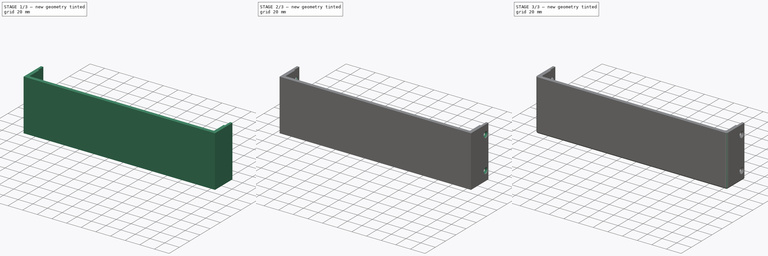
[diagram: build sequence overview — one tinted view per stage of 3, left to right]
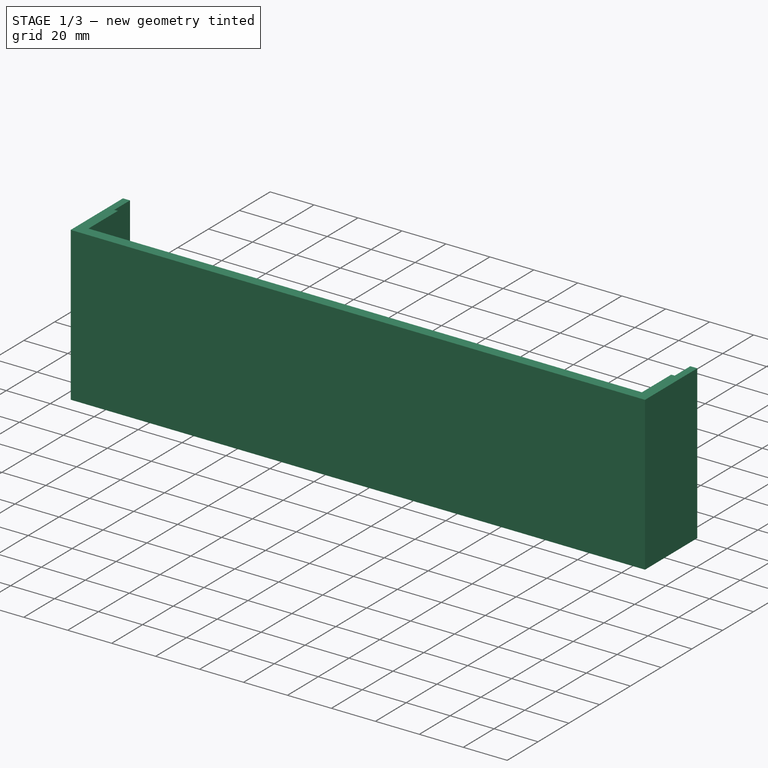
[diagram: stage 1 of 3 — iso view after this stage's code; geometry added in this stage tinted green]
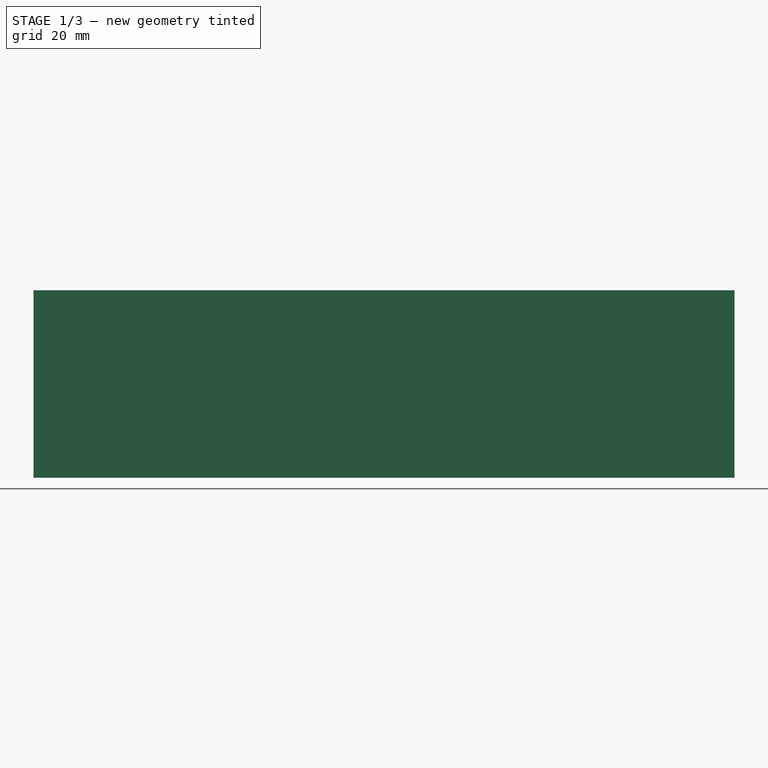
[diagram: stage 1 of 3 — front view after this stage's code; geometry added in this stage tinted green]
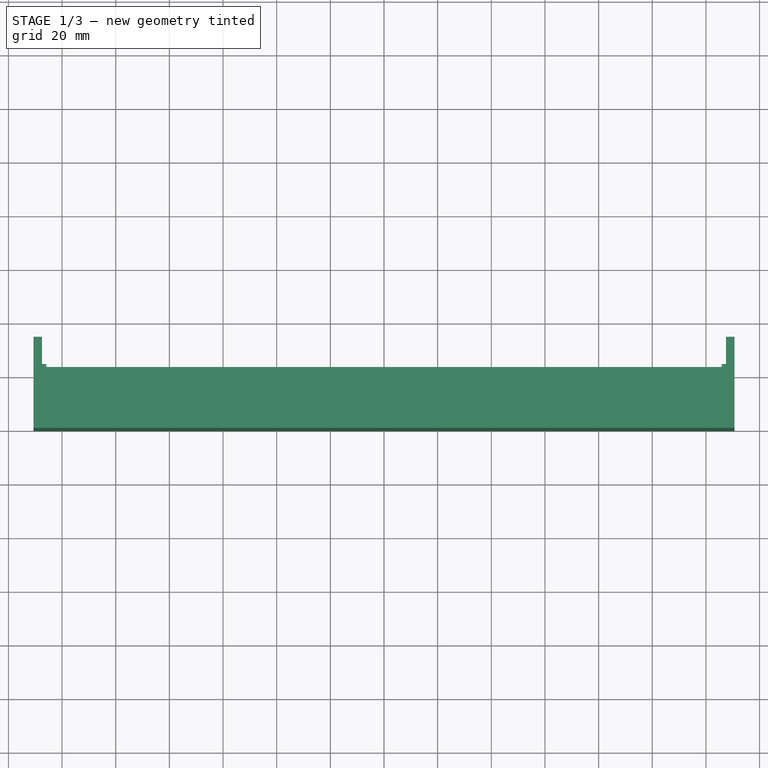
[diagram: stage 1 of 3 — top view after this stage's code; geometry added in this stage tinted green]
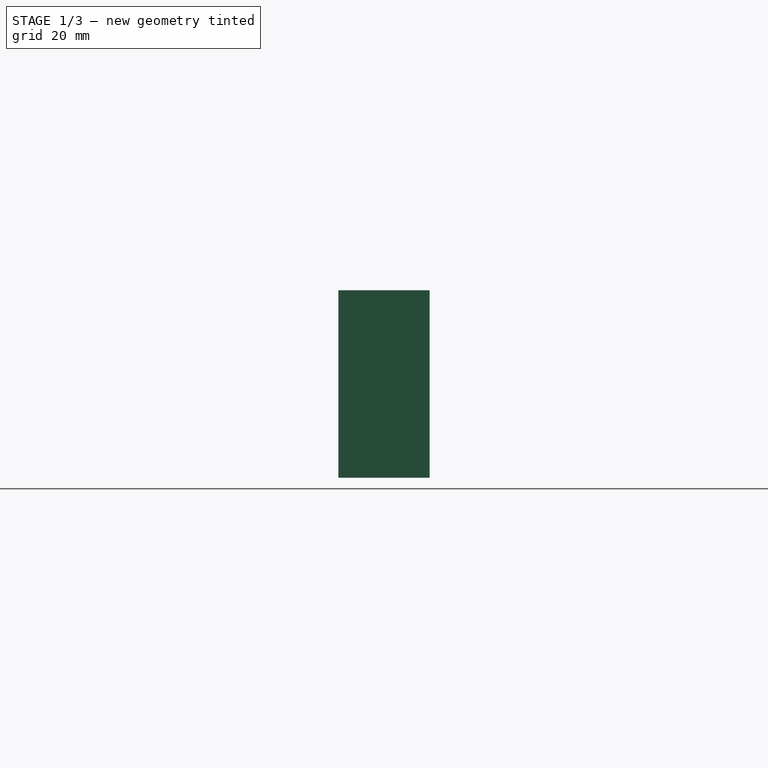
[diagram: stage 1 of 3 — right view after this stage's code; geometry added in this stage tinted green]
FCSTD DOCUMENT  (FreeCAD 1.0R38642 (Git))
Label: jigsaw_blade_holder
License: All rights reserved
LicenseURL: https://en.wikipedia.org/wiki/All_rights_reserved
objects: Sketcher::SketchObject×4, PartDesign::Pad×3, PartDesign::Hole×2, PartDesign::Fillet×2, PartDesign::Body×1
note: 30 computed .brp shape members not serialized (recipe doc carries the construction recipe); baked Part::Feature solids carry a one-line shape summary decoded from their .brp

FEATURE [Sketcher::SketchObject] Sketch
  ArcFitTolerance = 1e-06
  AttachmentSupport = -> [XY_Plane]
  FullyConstrained = true
  MakeInternals = false
  MapMode = 5
  sketch-geometry (16):
    g0: LineSegment StartX=-130.675 StartY=33.9725 StartZ=0 EndX=-130.675 EndY=0 EndZ=0
    g1: LineSegment StartX=-130.675 StartY=0 StartZ=0 EndX=0 EndY=0 EndZ=0
    g2: LineSegment StartX=-130.675 StartY=33.9725 StartZ=0 EndX=-127.5 EndY=33.9725 EndZ=0
    g3: LineSegment StartX=-127.5 StartY=33.9725 StartZ=0 EndX=-127.5 EndY=23.8125 EndZ=0
    g4: LineSegment StartX=-127.5 StartY=23.8125 StartZ=0 EndX=-125.912 EndY=23.8125 EndZ=0
    g5: LineSegment StartX=-125.912 StartY=23.8125 StartZ=0 EndX=-125.912 EndY=4.7625 EndZ=0
    g6: LineSegment StartX=-125.912 StartY=4.7625 StartZ=0 EndX=0 EndY=4.7625 EndZ=0
    g7: LineSegment StartX=-125.912 StartY=23.8125 StartZ=0 EndX=0 EndY=23.8125 EndZ=0
    g8: LineSegment StartX=130.675 StartY=33.9725 StartZ=0 EndX=130.675 EndY=0 EndZ=0
    g9: LineSegment StartX=130.675 StartY=2.2e-15 StartZ=0 EndX=0 EndY=0 EndZ=0
    g10: LineSegment StartX=130.675 StartY=33.9725 StartZ=0 EndX=127.5 EndY=33.9725 EndZ=0
    g11: LineSegment StartX=127.5 StartY=33.9725 StartZ=0 EndX=127.5 EndY=23.8125 EndZ=0
    g12: LineSegment StartX=127.5 StartY=23.8125 StartZ=0 EndX=125.912 EndY=23.8125 EndZ=0
    g13: LineSegment StartX=125.912 StartY=23.8125 StartZ=0 EndX=125.912 EndY=4.7625 EndZ=0
    g14: LineSegment StartX=125.912 StartY=4.7625 StartZ=0 EndX=0 EndY=4.7625 EndZ=0
    g15: LineSegment StartX=125.912 StartY=23.8125 StartZ=0 EndX=0 EndY=23.8125 EndZ=0
  constraints (46):
    c: PointOnObject(g0,g-1)
    c: Vertical(g0)
    c: Coincident(g1,g0)
    c: Coincident(g1,g-1)
    c: Coincident(g2,g0)
    c: Horizontal(g2)
    c: Coincident(g3,g2)
    c: Vertical(g3)
    c: Horizontal(g4)
    c: Vertical(g5)
    c: Coincident(g6,g5)
    c: PointOnObject(g6,g-2)
    c: Horizontal(g6)
    c: Coincident(g5,g4)
    c: Coincident(g4,g3)
    c: DistanceX(g2,g2) = 3.175
    c: DistanceY(g3,g3) = 10.16
    c: Distance(g4,g6) = 19.05
    c: Distance(g6,g1) = 4.7625
    c: DistanceX(g4,g4) = 1.5875
    c: Coincident(g7,g4)
    c: PointOnObject(g7,g-2)
    c: Horizontal(g7)
    c: Vertical(g8)
    c: Coincident(g9,g8)
    c: Coincident(g10,g8)
    c: Horizontal(g10)
    c: Coincident(g11,g10)
    c: Vertical(g11)
    c: Horizontal(g12)
    c: Vertical(g13)
    c: Coincident(g14,g13)
    c: Horizontal(g14)
    c: Coincident(g13,g12)
    c: Coincident(g12,g11)
    c: Distance(g12,g14) = 19.05
    c: Distance(g14,g9) = 4.7625
    c: Coincident(g15,g12)
    c: Equal(g9,g1)
    c: Equal(g15,g7)
    c: Equal(g10,g2)
    c: Coincident(g15,g7)
    c: Coincident(g9,g1)
    c: Coincident(g14,g6)
    c: Equal(g3,g11)
    c: Distance(g11,g3) = 255
FEATURE [PartDesign::Pad] Pad
  Direction = (0,0,1)
  Length = 69.85
  Length2 = 10
  Profile = -> Sketch [Edge13,Edge12,Edge11,Edge10,Edge9,Edge8,Edge14,Edge15,Edge5,Edge16,Edge4,Edge3,Edge2,Edge1]
  ReferenceAxis = -> Sketch [N_Axis]
  Refine = true
  Suppressed = false
  Type = 0
FEATURE [PartDesign::Pad] Pad001
  BaseFeature = -> Pad
  Direction = (0,0,1)
  Length = 6.35
  Length2 = 10
  Profile = -> Sketch [Edge9,Edge6,Edge8,Edge5,Edge7,Edge4]
  ReferenceAxis = -> Sketch [N_Axis]
  Refine = true
  Suppressed = false
  Type = 0
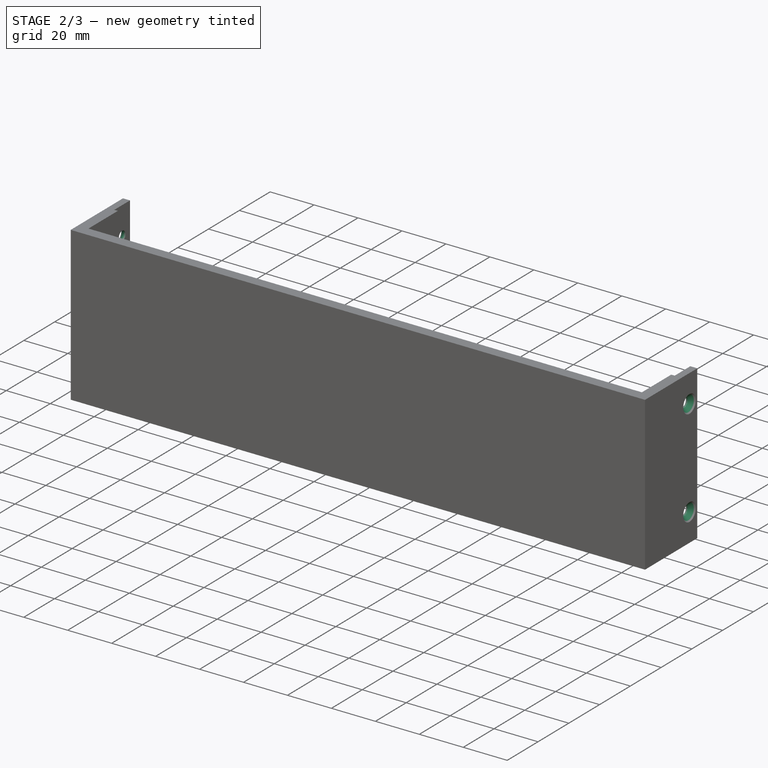
[diagram: stage 2 of 3 — iso view after this stage's code; geometry added in this stage tinted green]
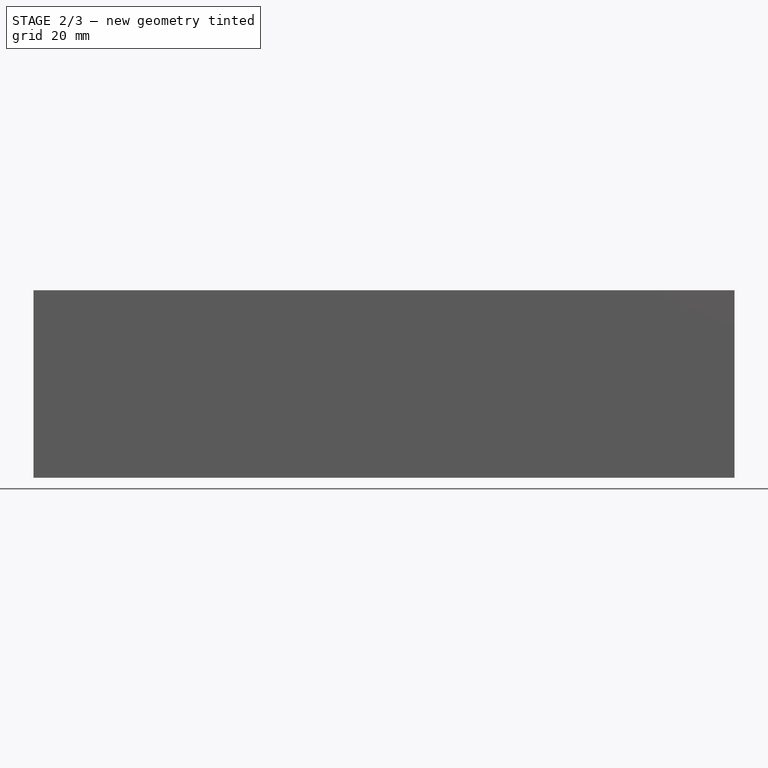
[diagram: stage 2 of 3 — front view after this stage's code; geometry added in this stage tinted green]
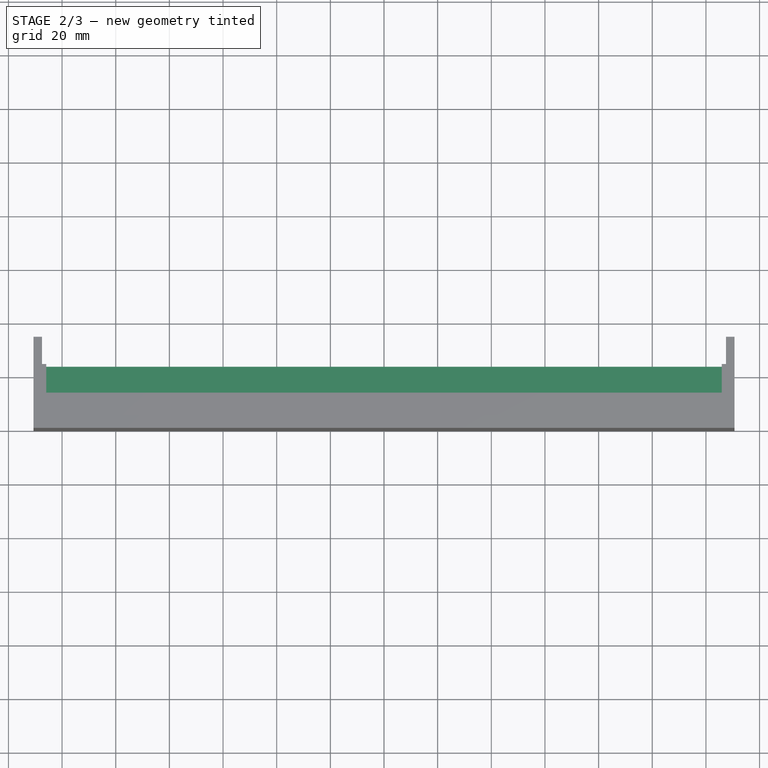
[diagram: stage 2 of 3 — top view after this stage's code; geometry added in this stage tinted green]
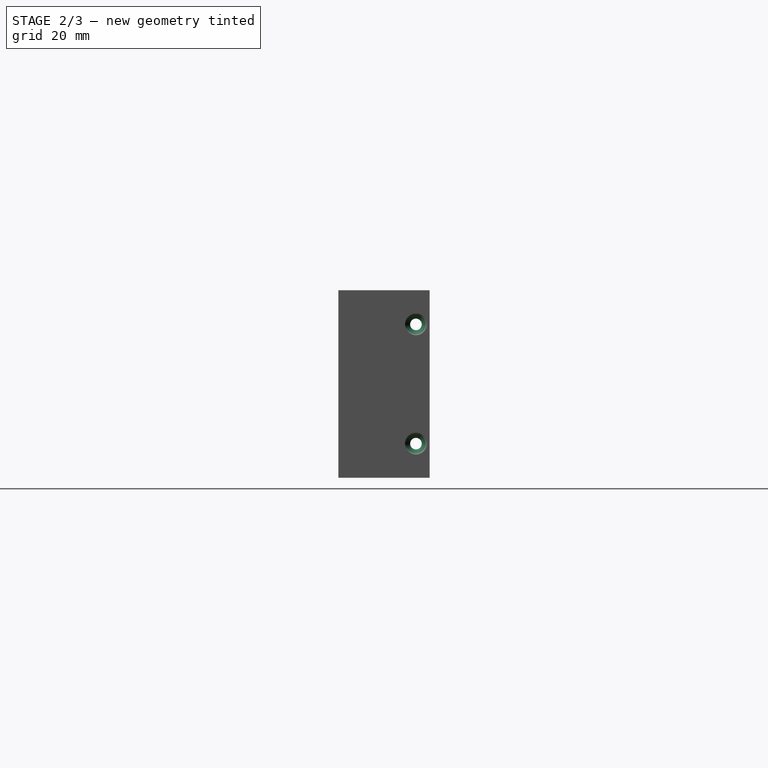
[diagram: stage 2 of 3 — right view after this stage's code; geometry added in this stage tinted green]
FEATURE [Sketcher::SketchObject] Sketch001
  ArcFitTolerance = 1e-06
  AttachmentSupport = -> [Pad001]
  ExternalGeometry = -> [Pad001]
  FullyConstrained = false
  MakeInternals = false
  MapMode = 5
  Placement = pos=(-125.912,0,0) rot=(0.57735,0.57735,0.57735;2.0944rad)
  sketch-geometry (9):
    g0: LineSegment StartX=14.2875 StartY=6.35 StartZ=0 EndX=23.8125 EndY=11.8493 EndZ=0
    g1: LineSegment StartX=23.8125 StartY=6.35 StartZ=0 EndX=23.8125 EndY=11.8493 EndZ=0
    g2: LineSegment StartX=23.8125 StartY=6.35 StartZ=0 EndX=14.2875 EndY=6.35 EndZ=0
    g3: Circle CenterX=28.8925 CenterY=57.15 CenterZ=0 NormalX=0 NormalY=0 NormalZ=1 AngleXU=0 Radius=1.778
    g4: Circle CenterX=28.8925 CenterY=12.7 CenterZ=0 NormalX=0 NormalY=0 NormalZ=1 AngleXU=0 Radius=1.778
    g5: LineSegment [constr] StartX=28.8925 StartY=57.15 StartZ=0 EndX=33.9725 EndY=69.85 EndZ=0
    g6: LineSegment [constr] StartX=28.8925 StartY=57.15 StartZ=0 EndX=23.8125 EndY=69.85 EndZ=0
    g7: LineSegment [constr] StartX=28.8925 StartY=12.7 StartZ=0 EndX=23.8125 EndY=0 EndZ=0
    g8: LineSegment [constr] StartX=33.9725 StartY=0 StartZ=0 EndX=28.8925 EndY=12.7 EndZ=0
  constraints (13):
    c: Coincident(g1,g0)
    c: Coincident(g2,g1)
    c: Coincident(g2,g0)
    c: Angle(g2,g0) = 0.523599
    c: DistanceX(g2,g2) = 9.525
    c: Coincident(g5,g3)
    c: Coincident(g6,g3)
    c: Equal(g6,g5)
    c: Coincident(g7,g4)
    c: Coincident(g8,g4)
    c: Equal(g8,g7)
    c: Diameter(g3) = 3.556
    c: Diameter(g4) = 3.556
FEATURE [PartDesign::Pad] Pad002
  BaseFeature = -> Pad001
  Direction = (1,0,0)
  Length = 10
  Length2 = 10
  Profile = -> Sketch001 [Edge2,Edge3,Edge1]
  ReferenceAxis = -> Sketch001 [N_Axis]
  Refine = true
  Suppressed = false
  Type = 3
  UpToFace = -> Pad001 [Face9]
FEATURE [Sketcher::SketchObject] Sketch002
  ArcFitTolerance = 1e-06
  AttachmentSupport = -> [Pad002]
  ExternalGeometry = -> [Sketch001]
  FullyConstrained = true
  MakeInternals = false
  MapMode = 5
  Placement = pos=(-130.675,0,0) rot=(0.57735,-0.57735,-0.57735;2.0944rad)
  sketch-geometry (2):
    g0: Circle CenterX=-28.8925 CenterY=57.15 CenterZ=0 NormalX=0 NormalY=0 NormalZ=1 AngleXU=0 Radius=1.778
    g1: Circle CenterX=-28.8925 CenterY=12.7 CenterZ=0 NormalX=0 NormalY=0 NormalZ=1 AngleXU=0 Radius=1.778
  constraints (4):
    c: Coincident(g0,g-4)
    c: Equal(g0,g-4)
    c: Coincident(g1,g-3)
    c: Equal(g1,g-3)
FEATURE [PartDesign::Hole] Hole
  BaseFeature = -> Pad002
  CustomThreadClearance = 0
  Depth = 24.892
  DepthType = 0
  Diameter = 4.318
  DrillForDepth = false
  DrillPoint = 1
  DrillPointAngle = 118
  HoleCutCountersinkAngle = 82
  HoleCutCustomValues = false
  HoleCutDepth = 0
  HoleCutDiameter = 8.128
  HoleCutType = 2
  ModelThread = false
  Profile = -> Sketch002
  Refine = true
  Suppressed = false
  Tapered = false
  TaperedAngle = 90
  ThreadClass = 0
  ThreadDepth = 24.892
  ThreadDepthType = 0
  ThreadDirection = 0
  ThreadFit = 0
  ThreadSize = 0
  ThreadType = 0
  Threaded = false
  UseCustomThreadClearance = false
FEATURE [Sketcher::SketchObject] Sketch003
  ArcFitTolerance = 1e-06
  AttachmentSupport = -> [Hole]
  ExternalGeometry = -> [Sketch001]
  FullyConstrained = true
  MakeInternals = false
  MapMode = 5
  Placement = pos=(130.675,0,0) rot=(0.57735,0.57735,0.57735;2.0944rad)
  sketch-geometry (2):
    g0: Circle CenterX=28.8925 CenterY=57.15 CenterZ=0 NormalX=0 NormalY=0 NormalZ=1 AngleXU=0 Radius=1.778
    g1: Circle CenterX=28.8925 CenterY=12.7 CenterZ=0 NormalX=0 NormalY=0 NormalZ=1 AngleXU=0 Radius=1.778
  constraints (4):
    c: Coincident(g0,g-3)
    c: Equal(g0,g-3)
    c: Coincident(g1,g-4)
    c: Equal(g1,g-4)
FEATURE [PartDesign::Hole] Hole001
  BaseFeature = -> Hole
  CustomThreadClearance = 0
  Depth = 24.892
  DepthType = 0
  Diameter = 4.318
  DrillForDepth = false
  DrillPoint = 1
  DrillPointAngle = 118
  HoleCutCountersinkAngle = 82
  HoleCutCustomValues = false
  HoleCutDepth = 0
  HoleCutDiameter = 8.128
  HoleCutType = 2
  ModelThread = false
  Profile = -> Sketch003
  Refine = true
  Suppressed = false
  Tapered = false
  TaperedAngle = 90
  ThreadClass = 0
  ThreadDepth = 24.892
  ThreadDepthType = 0
  ThreadDirection = 0
  ThreadFit = 0
  ThreadSize = 0
  ThreadType = 0
  Threaded = false
  UseCustomThreadClearance = false
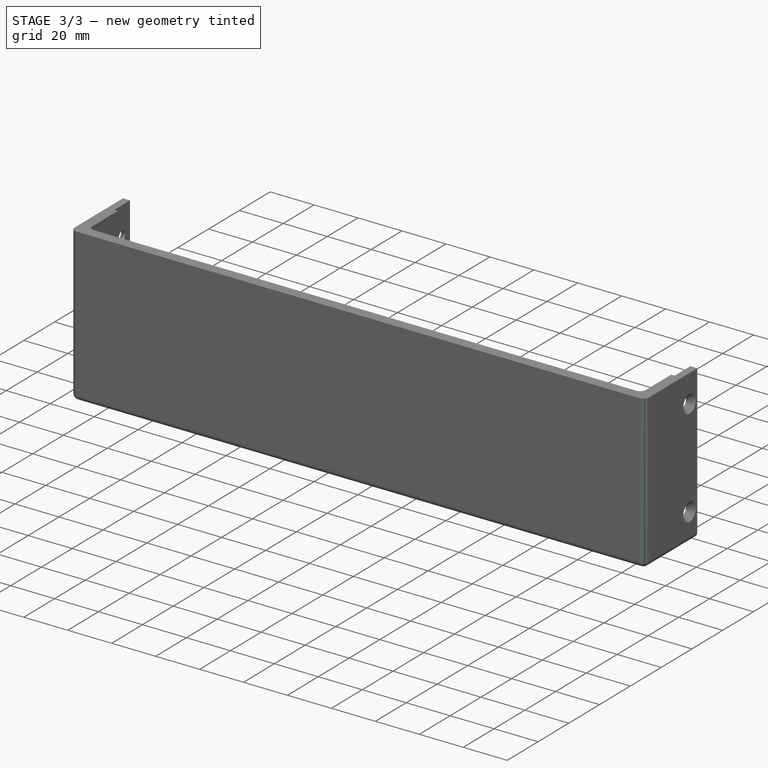
[diagram: stage 3 of 3 — iso view after this stage's code; geometry added in this stage tinted green]
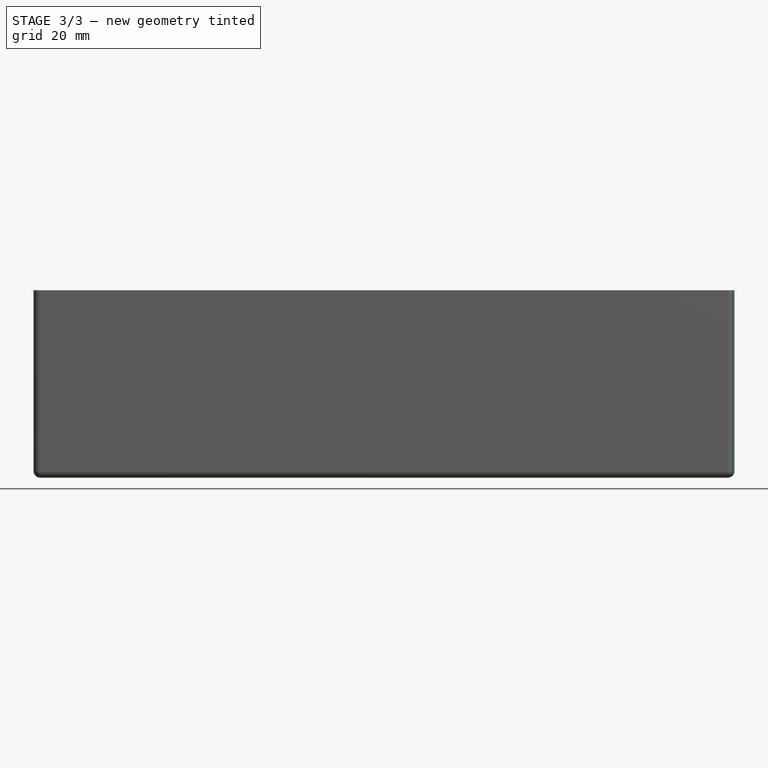
[diagram: stage 3 of 3 — front view after this stage's code; geometry added in this stage tinted green]
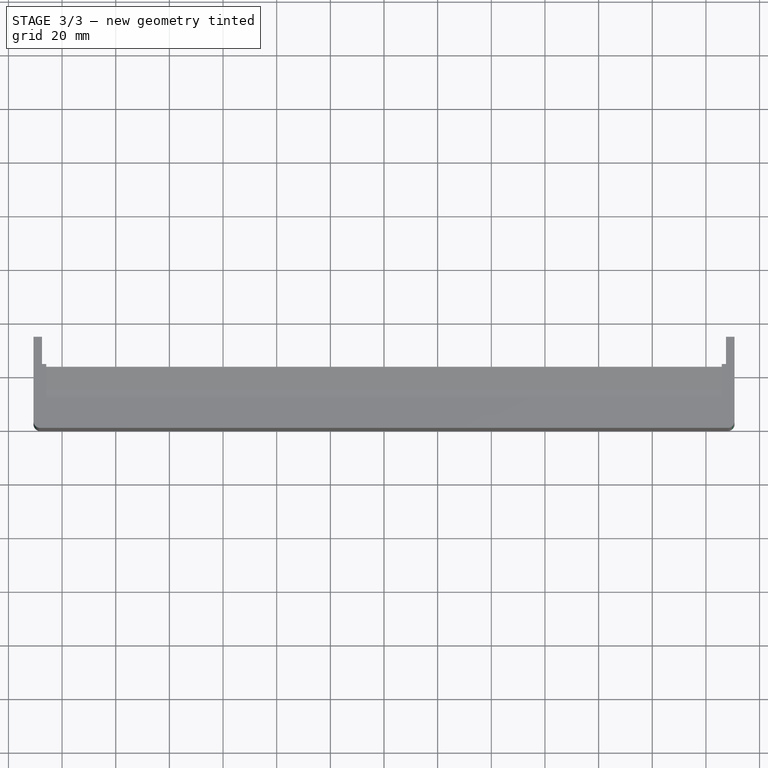
[diagram: stage 3 of 3 — top view after this stage's code; geometry added in this stage tinted green]
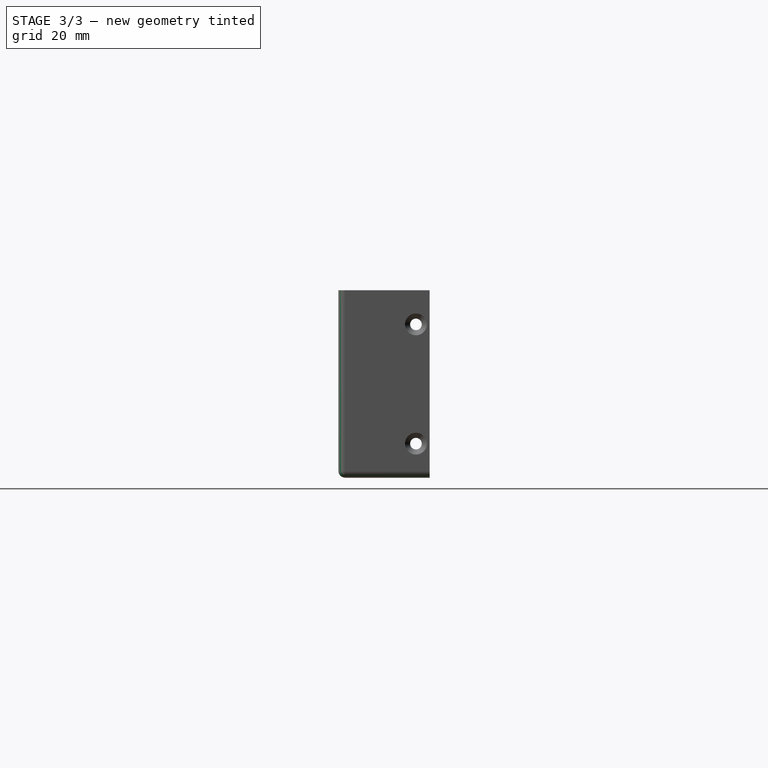
[diagram: stage 3 of 3 — right view after this stage's code; geometry added in this stage tinted green]
FEATURE [PartDesign::Fillet] Fillet
  Base = -> Hole001 [Edge45,Edge26,Edge14,Edge15,Edge4,Edge2,Edge47]
  BaseFeature = -> Hole001
  Radius = 2.54
  Refine = true
  SupportTransform = false
  Suppressed = false
  UseAllEdges = false
FEATURE [PartDesign::Fillet] Fillet001
  Base = -> Fillet [Edge76]
  BaseFeature = -> Fillet
  Radius = 7.62
  Refine = true
  SupportTransform = false
  Suppressed = false
  UseAllEdges = false
FEATURE [PartDesign::Body] Body
  AllowCompound = false
  Group = -> [Sketch,Pad,Pad001,Sketch001,Pad002,Sketch002,Hole,Sketch003,Hole001,Fillet,Fillet001]
  Origin = -> Origin
  Tip = -> Fillet001
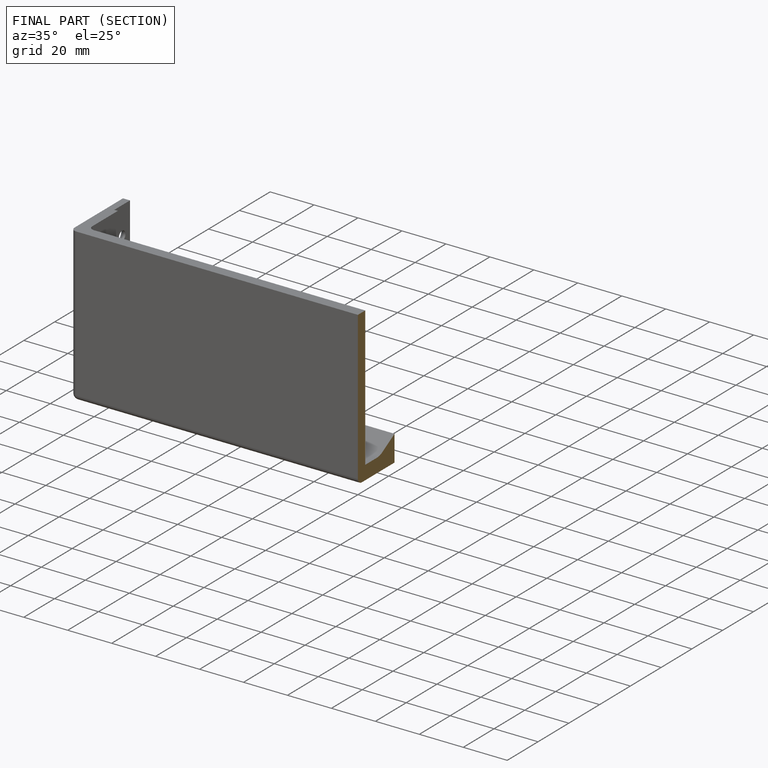
[diagram: finished part — half-section view (interior)]
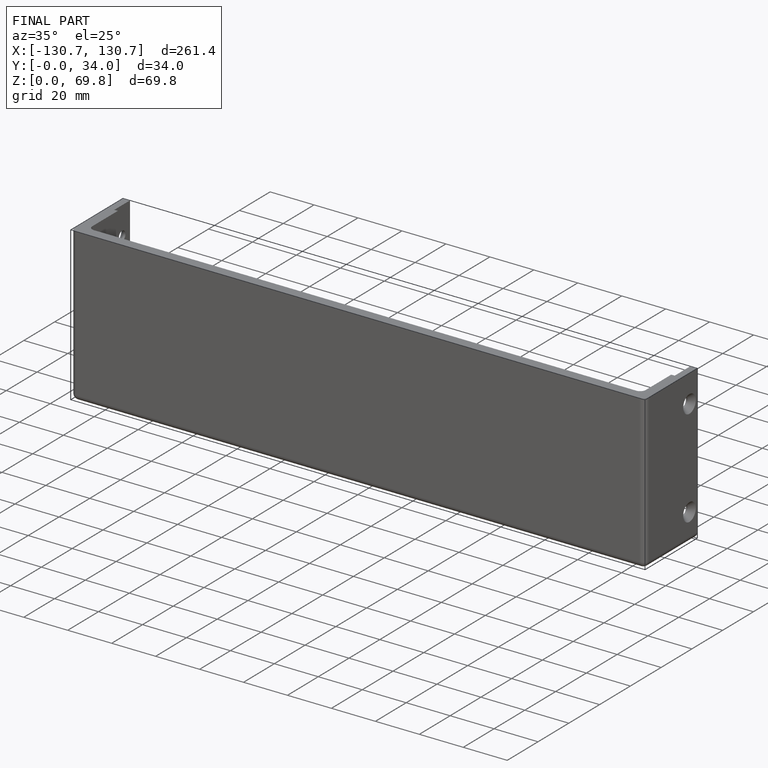
[diagram: finished part — iso view with bounding-box wireframe]
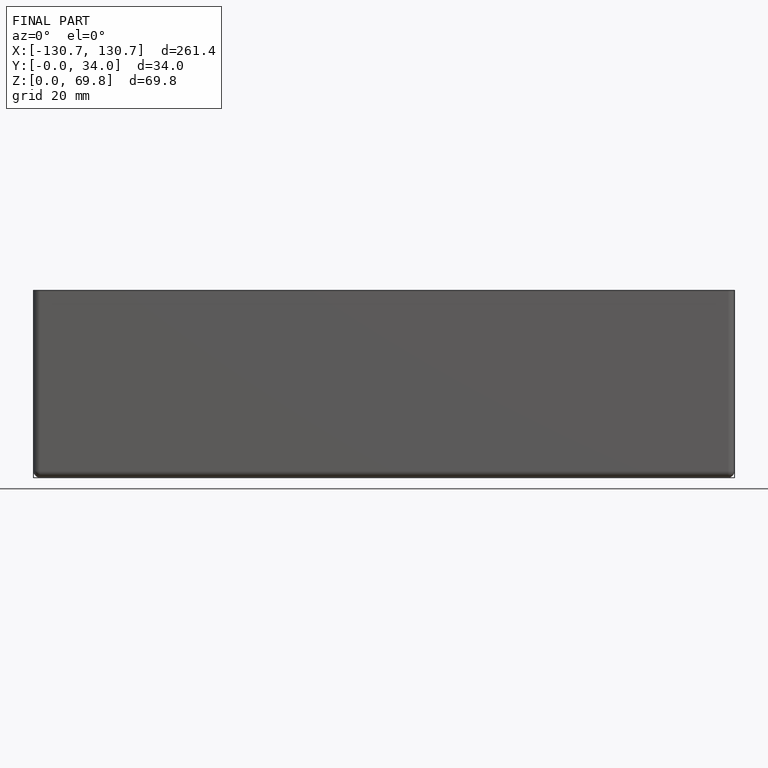
[diagram: finished part — front view with bounding-box wireframe]
